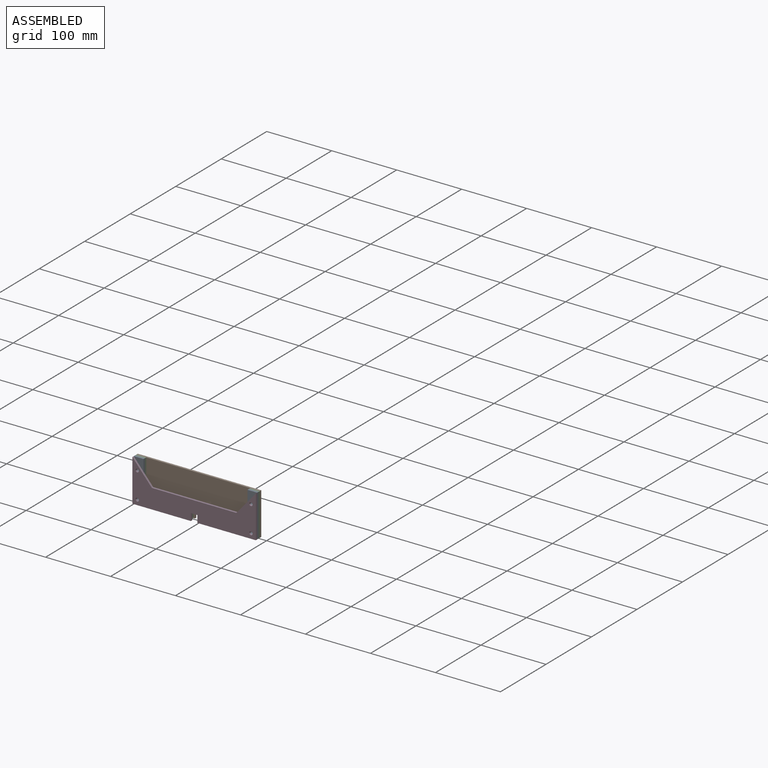
[diagram: assembled view]
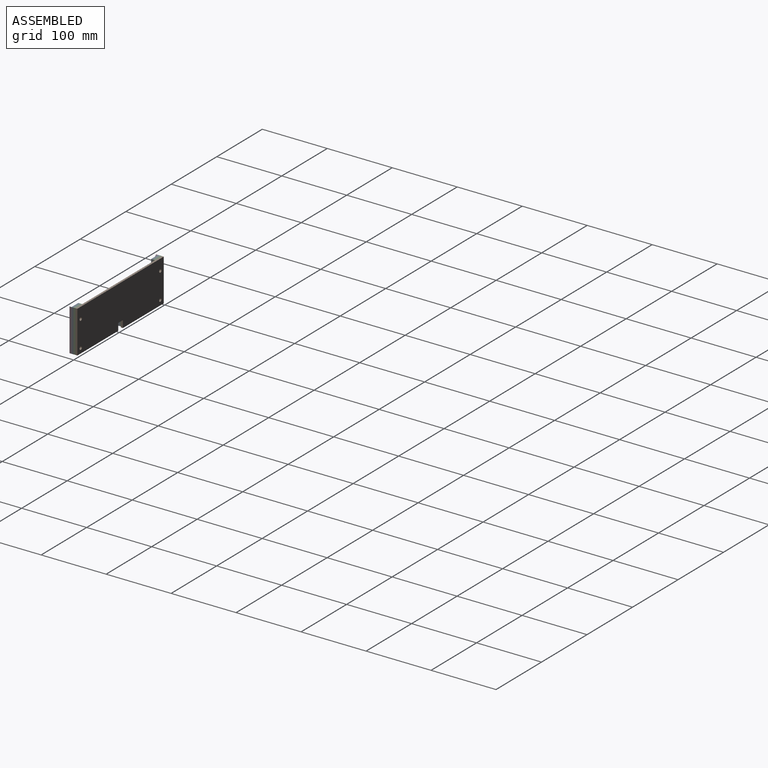
[diagram: assembled view, second angle]
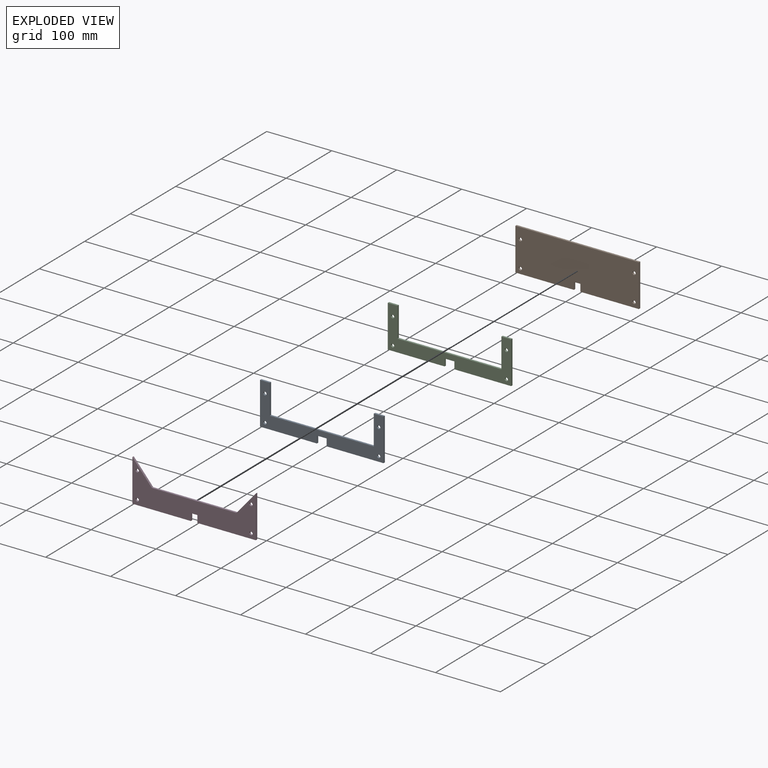
[diagram: exploded view]
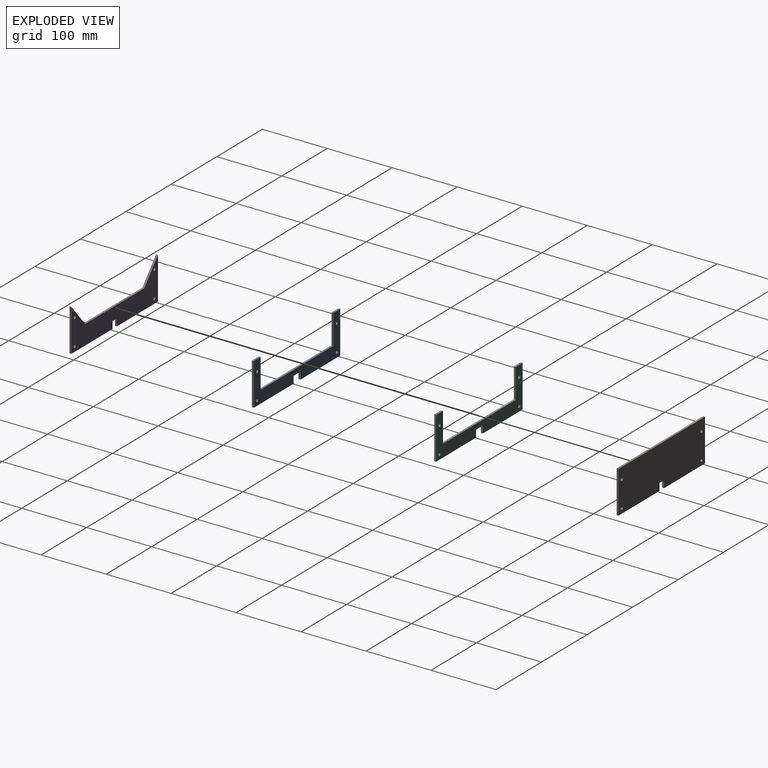
[diagram: exploded view, second angle]
ASSEMBLY  parts=4 mates=3
PART A: 18 faces, bbox 190x3x65 mm
  f0: plane 45.74x3mm, normal (1,0,0), area 137.2mm2, adj f1,f14,f16,f17
  f1: plane 15x3mm, normal (0,0,1), area 45mm2, adj f0,f2,f16,f17
  f2: plane 65x3mm, normal (-1,0,0), area 195mm2, adj f1,f3,f16,f17
  f3: plane 87.5x3mm, normal (0,0,-1), area 262.5mm2, adj f2,f4,f16,f17
  f4: plane 11x3mm, normal (1,0,0), area 33mm2, adj f3,f5,f16,f17
  f5: plane 15x3mm, normal (0,0,-1), area 45mm2, adj f4,f6,f16,f17
  f6: plane 11x3mm, normal (-1,0,0), area 33mm2, adj f5,f7,f16,f17
  f7: plane 87.5x3mm, normal (0,0,-1), area 262.5mm2, adj f6,f8,f16,f17
  f8: plane 65x3mm, normal (1,0,0), area 195mm2, adj f7,f9,f16,f17
  f9: plane 15x3mm, normal (0,0,1), area 45mm2, adj f8,f10,f16,f17
  f10: plane 45.74x3mm, normal (-1,0,0), area 137.2mm2, adj f9,f14,f16,f17
  f11: cylinder r=2.5mm len=5mm, axis (0,1,0), area 47.1mm2, adj f16,f17
  f12: cylinder r=2.5mm len=5mm, axis (0,1,0), area 47.1mm2, adj f16,f17
  f13: cylinder r=2.5mm len=5mm, axis (0,1,0), area 47.1mm2, adj f16,f17
  f14: plane 160x3mm, normal (0,0,1), area 480mm2, adj f0,f10,f16,f17
  f15: cylinder r=2.5mm len=5mm, axis (0,1,0), area 47.1mm2, adj f16,f17
  f16: plane 190x65mm, normal (0,-1,0), area 4788.2mm2, adj f0,f1,f2,f3,f4,f5,f6,f7
  f17: plane 190x65mm, normal (0,1,0), area 4788.2mm2, adj f0,f1,f2,f3,f4,f5,f6,f7
PART B: 14 faces, bbox 190x3x65 mm
  f0: plane 90x3mm, normal (0,0,-1), area 270mm2, adj f1,f10,f12,f13
  f1: plane 11x3mm, normal (1,0,0), area 33mm2, adj f0,f2,f12,f13
  f2: plane 10x3mm, normal (0,0,-1), area 30mm2, adj f1,f3,f12,f13
  f3: plane 11x3mm, normal (-1,0,0), area 33mm2, adj f2,f4,f12,f13
  f4: plane 90x3mm, normal (0,0,-1), area 270mm2, adj f3,f5,f12,f13
  f5: plane 65x3mm, normal (1,0,0), area 195mm2, adj f4,f6,f12,f13
  f6: plane 190x3mm, normal (0,0,1), area 570mm2, adj f5,f10,f12,f13
  f7: cylinder r=2.5mm len=5mm, axis (0,1,0), area 47.1mm2, adj f12,f13
  f8: cylinder r=2.5mm len=5mm, axis (0,1,0), area 47.1mm2, adj f12,f13
  f9: cylinder r=2.5mm len=5mm, axis (0,1,0), area 47.1mm2, adj f12,f13
  f10: plane 65x3mm, normal (-1,0,0), area 195mm2, adj f0,f6,f12,f13
  f11: cylinder r=2.5mm len=5mm, axis (0,1,0), area 47.1mm2, adj f12,f13
  f12: plane 190x65mm, normal (0,-1,0), area 12161.5mm2, adj f0,f1,f2,f3,f4,f5,f6,f7
  f13: plane 190x65mm, normal (0,1,0), area 12161.5mm2, adj f0,f1,f2,f3,f4,f5,f6,f7
PART C: same geometry as A
PART D: 16 faces, bbox 190x3x65 mm
  f0: plane 90x3mm, normal (0,0,-1), area 270mm2, adj f1,f12,f14,f15
  f1: plane 11x3mm, normal (1,0,0), area 33mm2, adj f0,f2,f14,f15
  f2: plane 10x3mm, normal (0,0,-1), area 30mm2, adj f1,f3,f14,f15
  f3: plane 11x3mm, normal (-1,0,0), area 33mm2, adj f2,f4,f14,f15
  f4: plane 90x3mm, normal (0,0,-1), area 270mm2, adj f3,f5,f14,f15
  f5: plane 65x3mm, normal (1,0,0), area 195mm2, adj f4,f6,f14,f15
  f6: plane 35x30mm, normal (-0.76,0,0.65), area 138.3mm2, adj f5,f7,f14,f15
  f7: plane 130x3mm, normal (0,0,1), area 390mm2, adj f6,f8,f14,f15
  f8: plane 35x30mm, normal (0.76,0,0.65), area 138.3mm2, adj f7,f12,f14,f15
  f9: cylinder r=2.5mm len=5mm, axis (0,1,0), area 47.1mm2, adj f14,f15
  f10: cylinder r=2.5mm len=5mm, axis (0,1,0), area 47.1mm2, adj f14,f15
  f11: cylinder r=2.5mm len=5mm, axis (0,1,0), area 47.1mm2, adj f14,f15
  f12: plane 65x3mm, normal (-1,0,0), area 195mm2, adj f0,f8,f14,f15
  f13: cylinder r=2.5mm len=5mm, axis (0,1,0), area 47.1mm2, adj f14,f15
  f14: plane 190x65mm, normal (0,-1,0), area 6561.5mm2, adj f0,f1,f2,f3,f4,f5,f6,f7
  f15: plane 190x65mm, normal (0,1,0), area 6561.5mm2, adj f0,f1,f2,f3,f4,f5,f6,f7
PLACE A t=(-8.07,-6,4.1)mm
PLACE B t=(-8.07,0,4.1)mm
PLACE C t=(-8.07,-3,4.1)mm
PLACE D t=(-8.07,-9,4.1)mm
MATE fastened A.f15 <-> C.f15  axis (0,-1,0) through (-15.57,-9,11.6)mm
MATE fastened C.f15 <-> B.f11  axis (0,-1,0) through (-15.57,-6,11.6)mm
MATE fastened D.f10 <-> A.f15  axis (0,-1,0) through (-15.57,-12,11.6)mm
